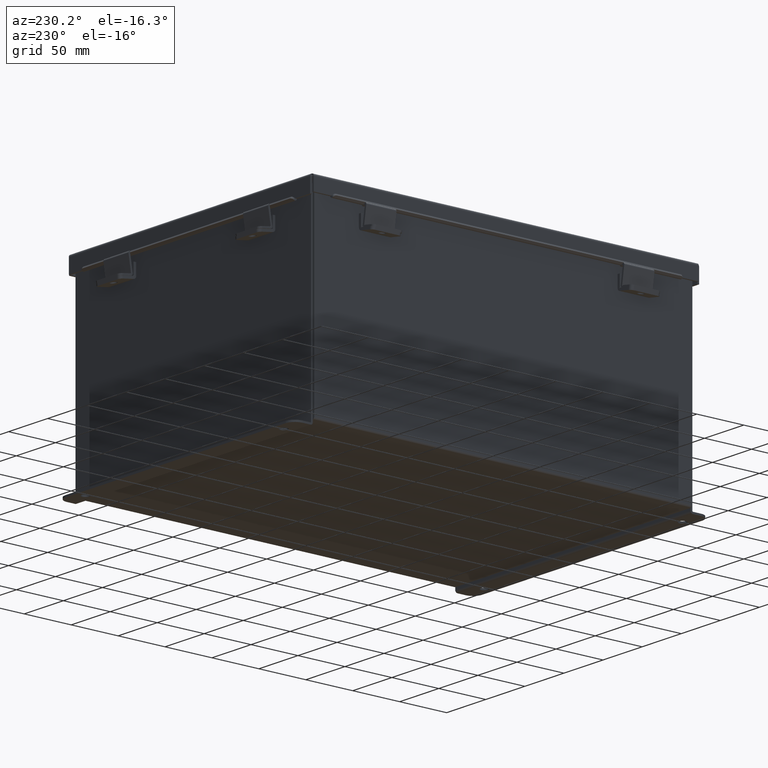
[diagram: clean part render]
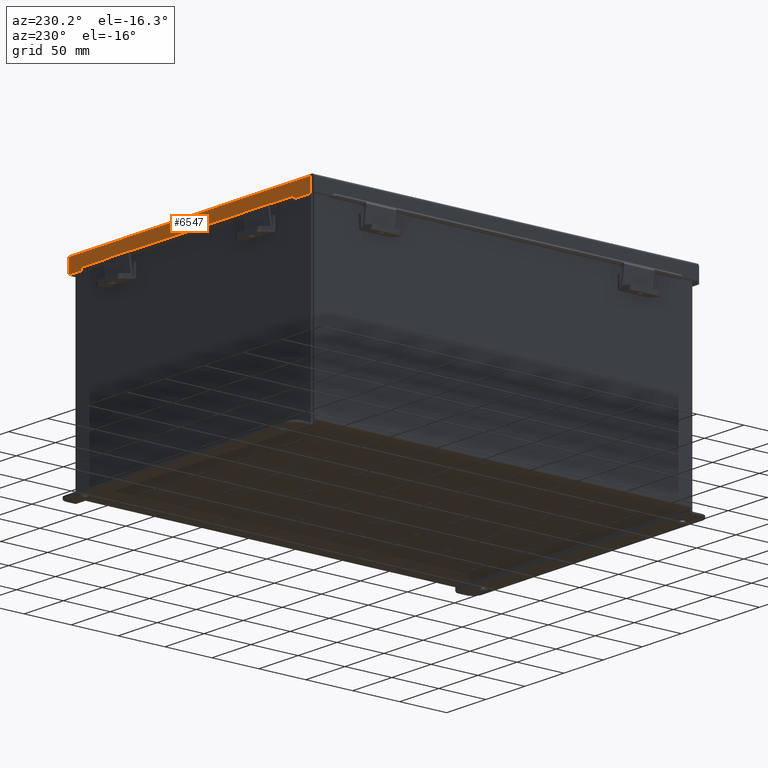
[diagram: same view with one face highlighted and labeled with its STEP entity id]
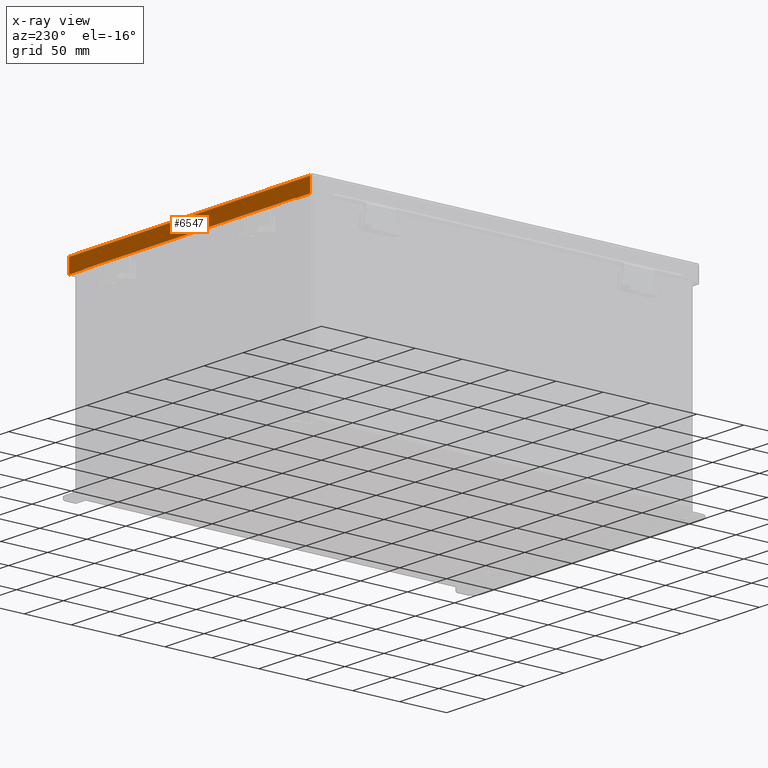
[diagram: x-ray of the same camera — body ghosted, the highlighted face saturated]
A machine part, auxiliary view. The second image highlights one B-rep face of the part: STEP entity #6547.
The next image is the same camera in x-ray: the body ghosted, the highlighted face saturated — about 0% of this face is hidden behind the body in this view.
In plain terms, the highlighted planar face has unit normal (-0, -1, -0).
Its self-contained STEP definition (entity closure, byte-faithful):
#521 = DIRECTION ( 'NONE',  ( 1.000000000000000000, 3.215253892142773000E-030, 5.546899479520625800E-018 ) ) ;
#669 = CARTESIAN_POINT ( 'NONE',  ( 6.074478932188153400, 8.156250000000000000, -1.092739197465705300E-015 ) ) ;
#684 = VECTOR ( 'NONE', #7158, 39.37007874015748100 ) ;
#949 = ORIENTED_EDGE ( 'NONE', *, *, #8796, .F. ) ;
#1373 = VERTEX_POINT ( 'NONE', #3844 ) ;
#1567 = ORIENTED_EDGE ( 'NONE', *, *, #1980, .T. ) ;
#1804 = PLANE ( 'NONE',  #4473 ) ;
#1821 = EDGE_CURVE ( 'NONE', #6961, #1850, #4571, .T. ) ;
#1850 = VERTEX_POINT ( 'NONE', #9008 ) ;
#1851 = DIRECTION ( 'NONE',  ( -7.009925220120406800E-014, -2.803970088048153600E-013, -1.000000000000000000 ) ) ;
#1970 = EDGE_CURVE ( 'NONE', #4880, #3100, #8383, .T. ) ;
#1976 = CARTESIAN_POINT ( 'NONE',  ( 5.324478932188150700, 8.156250000000001800, 0.6122999999999994000 ) ) ;
#1980 = EDGE_CURVE ( 'NONE', #4880, #1373, #4493, .T. ) ;
#1983 = CARTESIAN_POINT ( 'NONE',  ( -1.173840934777613000E-017, 8.156250000000001800, 0.6123000000000005100 ) ) ;
#1987 = CARTESIAN_POINT ( 'NONE',  ( 6.156250000000015100, 8.156250000000000000, 0.01300000000000010700 ) ) ;
#2085 = CARTESIAN_POINT ( 'NONE',  ( -6.074478932188154300, 8.156250000000000000, 0.01300000000000010700 ) ) ;
#2371 = CARTESIAN_POINT ( 'NONE',  ( -6.074478932188154300, 8.156250000000001800, 0.6123000000000080600 ) ) ;
#2418 = CARTESIAN_POINT ( 'NONE',  ( 5.324478932188149800, 8.156250000000001800, 0.5967115427318782100 ) ) ;
#2534 = CARTESIAN_POINT ( 'NONE',  ( -1.173840934777613000E-017, 8.156250000000001800, 0.6123000000000005100 ) ) ;
#2544 = DIRECTION ( 'NONE',  ( 0.0000000000000000000, -3.569293475308532400E-015, -1.000000000000000000 ) ) ;
#2614 = ORIENTED_EDGE ( 'NONE', *, *, #6012, .F. ) ;
#2629 = DIRECTION ( 'NONE',  ( -0.0000000000000000000, 3.569293475308532400E-015, 1.000000000000000000 ) ) ;
#2842 = VECTOR ( 'NONE', #5825, 39.37007874015748100 ) ;
#2880 = DIRECTION ( 'NONE',  ( 1.000000000000000000, 3.215253892142773000E-030, 5.546899479520625800E-018 ) ) ;
#3100 = VERTEX_POINT ( 'NONE', #2418 ) ;
#3132 = FACE_OUTER_BOUND ( 'NONE', #5729, .T. ) ;
#3267 = DIRECTION ( 'NONE',  ( 0.0000000000000000000, 3.569293475308532400E-015, 1.000000000000000000 ) ) ;
#3330 = LINE ( 'NONE', #5538, #3346 ) ;
#3346 = VECTOR ( 'NONE', #3267, 39.37007874015748100 ) ;
#3547 = ORIENTED_EDGE ( 'NONE', *, *, #4525, .T. ) ;
#3844 = CARTESIAN_POINT ( 'NONE',  ( 6.074478932188153400, 8.156250000000001800, 0.6122999999999994000 ) ) ;
#3960 = ORIENTED_EDGE ( 'NONE', *, *, #1970, .F. ) ;
#4127 = ORIENTED_EDGE ( 'NONE', *, *, #6467, .T. ) ;
#4421 = CARTESIAN_POINT ( 'NONE',  ( -5.324478932188150700, 8.156250000000001800, 0.5967115427318858700 ) ) ;
#4473 = AXIS2_PLACEMENT_3D ( 'NONE', #4822, #7106, #2544 ) ;
#4493 = LINE ( 'NONE', #1983, #5607 ) ;
#4523 = ORIENTED_EDGE ( 'NONE', *, *, #1821, .F. ) ;
#4525 = EDGE_CURVE ( 'NONE', #9778, #1850, #9275, .T. ) ;
#4553 = LINE ( 'NONE', #669, #4559 ) ;
#4559 = VECTOR ( 'NONE', #2629, 39.37007874015748100 ) ;
#4571 = LINE ( 'NONE', #7946, #684 ) ;
#4822 = CARTESIAN_POINT ( 'NONE',  ( 0.0000000000000000000, 8.156250000000000000, -2.950395833157404200E-014 ) ) ;
#4878 = LINE ( 'NONE', #1987, #2842 ) ;
#4880 = VERTEX_POINT ( 'NONE', #1976 ) ;
#5220 = VECTOR ( 'NONE', #1851, 39.37007874015748100 ) ;
#5296 = VECTOR ( 'NONE', #8142, 39.37007874015748100 ) ;
#5395 = LINE ( 'NONE', #7074, #5296 ) ;
#5519 = VERTEX_POINT ( 'NONE', #2085 ) ;
#5538 = CARTESIAN_POINT ( 'NONE',  ( -6.074478932188153400, 8.156250000000000000, -2.841121913410833900E-014 ) ) ;
#5607 = VECTOR ( 'NONE', #521, 39.37007874015748100 ) ;
#5729 = EDGE_LOOP ( 'NONE', ( #3960, #1567, #2614, #949, #4127, #3547, #4523, #9343 ) ) ;
#5755 = EDGE_CURVE ( 'NONE', #3100, #6961, #5395, .T. ) ;
#5825 = DIRECTION ( 'NONE',  ( 1.000000000000000000, 3.191323508412550700E-030, -0.0000000000000000000 ) ) ;
#6012 = EDGE_CURVE ( 'NONE', #6851, #1373, #4553, .T. ) ;
#6467 = EDGE_CURVE ( 'NONE', #5519, #9778, #3330, .T. ) ;
#6547 = ADVANCED_FACE ( 'NONE', ( #3132 ), #1804, .F. ) ;
#6631 = CARTESIAN_POINT ( 'NONE',  ( 6.074478932188154300, 8.156250000000000000, 0.01299999999999901400 ) ) ;
#6702 = CARTESIAN_POINT ( 'NONE',  ( 5.324478932188150700, 8.156250000000003600, 0.6122999999999982900 ) ) ;
#6851 = VERTEX_POINT ( 'NONE', #6631 ) ;
#6961 = VERTEX_POINT ( 'NONE', #4421 ) ;
#7074 = CARTESIAN_POINT ( 'NONE',  ( 5.324478932188150700, 8.156250000000000000, 0.5967115427318782100 ) ) ;
#7106 = DIRECTION ( 'NONE',  ( -3.372195227344556400E-030, -1.000000000000000000, 3.569293475308532400E-015 ) ) ;
#7158 = DIRECTION ( 'NONE',  ( 0.0000000000000000000, 2.102977566036071600E-013, 1.000000000000000000 ) ) ;
#7946 = CARTESIAN_POINT ( 'NONE',  ( -5.324478932188150700, 8.156250000000000000, 0.5967115427318858700 ) ) ;
#8142 = DIRECTION ( 'NONE',  ( -1.000000000000000000, -3.215975411700707400E-030, -0.0000000000000000000 ) ) ;
#8383 = LINE ( 'NONE', #6702, #5220 ) ;
#8796 = EDGE_CURVE ( 'NONE', #5519, #6851, #4878, .T. ) ;
#9008 = CARTESIAN_POINT ( 'NONE',  ( -5.324478932188149800, 8.156250000000001800, 0.6123000000000080600 ) ) ;
#9140 = VECTOR ( 'NONE', #2880, 39.37007874015748100 ) ;
#9275 = LINE ( 'NONE', #2534, #9140 ) ;
#9343 = ORIENTED_EDGE ( 'NONE', *, *, #5755, .F. ) ;
#9778 = VERTEX_POINT ( 'NONE', #2371 ) ;